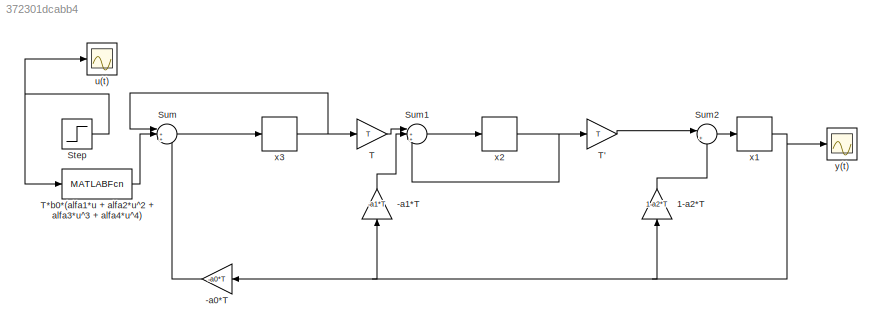
MODEL slx_372301dcabb4
KIND model
CONFIG AbsTol = auto
CONFIG EnableMultiTasking = off
CONFIG FixedStep = auto
CONFIG MaxStep = auto
CONFIG MinStep = auto
CONFIG RelTol = 1e-3
CONFIG SampleTimeConstraint = Unconstrained
CONFIG SolverName = VariableStepAuto
CONFIG StartTime = 0.0
CONFIG StopTime = 100.0
BLOCK [Gain] -a0*T
  Gain = -a0*T
BLOCK [Gain] -a1*T
  Gain = -a1*T
  NameLocation = right
BLOCK [Gain] 1-a2*T
  Gain = 1-a2*T
  NameLocation = right
BLOCK [Step] Step
  After = 0.5
  SampleTime = 0
  Time = 10
BLOCK [Sum] Sum
  Inputs = |+++
BLOCK [Sum] Sum1
  Inputs = |+++
BLOCK [Sum] Sum2
  Inputs = |++
BLOCK [Gain] T
  Gain = T
BLOCK [Gain] T'
  Gain = T
BLOCK [MATLABFcn] T*b0*(alfa1*u + alfa2*u^2 + alfa3*u^3 + alfa4*u^4)
  MATLABFcn = T*b0*alfa1*u + T*b0*alfa2*u^2 + T*b0*alfa3*u^3 + T*b0*alfa4*u^4
BLOCK [Scope] u(t)
  Floating = off
  NumInputPorts = 1
  ScopeSpecificationString = Simulink.scopes.TimeScopeBlockCfg('CurrentConfiguration', extmgr.ConfigurationSet(extmgr.Configuration('Core','General UI',true),extmgr.Configuration('Core','Source UI',true),extmgr.Configuration('Sources','WiredSimulink',true,'DataLoggingVariableName','ScopeData1'),extmgr.Configuration('Visuals','Time Domain',true,'SerializedDisplays',{struct('MinYLimReal','-0.0625','MaxYLimReal','0.5625','YLabel...<+1357ch>
BLOCK [Delay] x1
  DelayLength = 1
  InitialCondition = 0
  InputPortMap = u0
  SampleTime = T
BLOCK [Delay] x2
  DelayLength = 1
  InitialCondition = 0
  InputPortMap = u0
  SampleTime = T
BLOCK [Delay] x3
  DelayLength = 1
  InitialCondition = 0
  InputPortMap = u0
  SampleTime = T
BLOCK [Scope] y(t)
  Floating = off
  NumInputPorts = 1
  ScopeSpecificationString = Simulink.scopes.TimeScopeBlockCfg('CurrentConfiguration', extmgr.ConfigurationSet(extmgr.Configuration('Core','General UI',true),extmgr.Configuration('Core','Source UI',true),extmgr.Configuration('Sources','WiredSimulink',true),extmgr.Configuration('Visuals','Time Domain',true,'SerializedDisplays',{struct('MinYLimReal','-0.03528','MaxYLimReal','0.31754','YLabelReal','','MinYLimMag','0.00000','MaxY...<+1322ch>
LINE -a0*T:1 -> Sum:3
LINE -a1*T:1 -> Sum1:2
LINE 1-a2*T:1 -> Sum2:2
NET Step:1 -> T*b0*(alfa1*u + alfa2*u^2 + alfa3*u^3 + alfa4*u^4):1, u(t):1
LINE Sum1:1 -> x2:1
LINE Sum2:1 -> x1:1
LINE Sum:1 -> x3:1
LINE T':1 -> Sum2:1
LINE T*b0*(alfa1*u + alfa2*u^2 + alfa3*u^3 + alfa4*u^4):1 -> Sum:2
LINE T:1 -> Sum1:1
NET x1:1 -> -a0*T:1, -a1*T:1, 1-a2*T:1, y(t):1
NET x2:1 -> Sum1:3, T':1
NET x3:1 -> Sum:1, T:1
note: NET lines group one-source signal fan-out (src -> all destinations, sorted); 1:1 wires keep LINE
